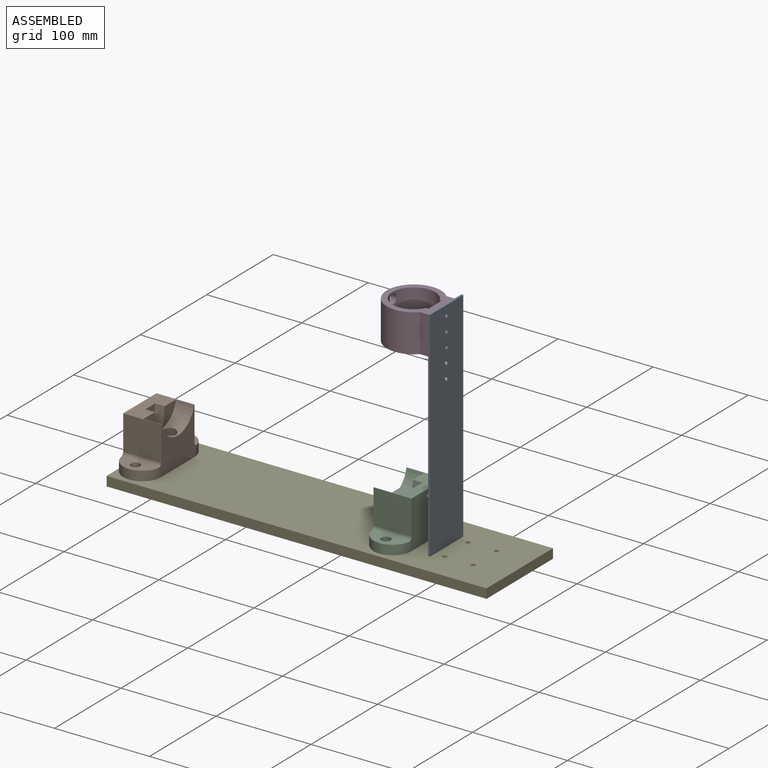
[diagram: assembled view]
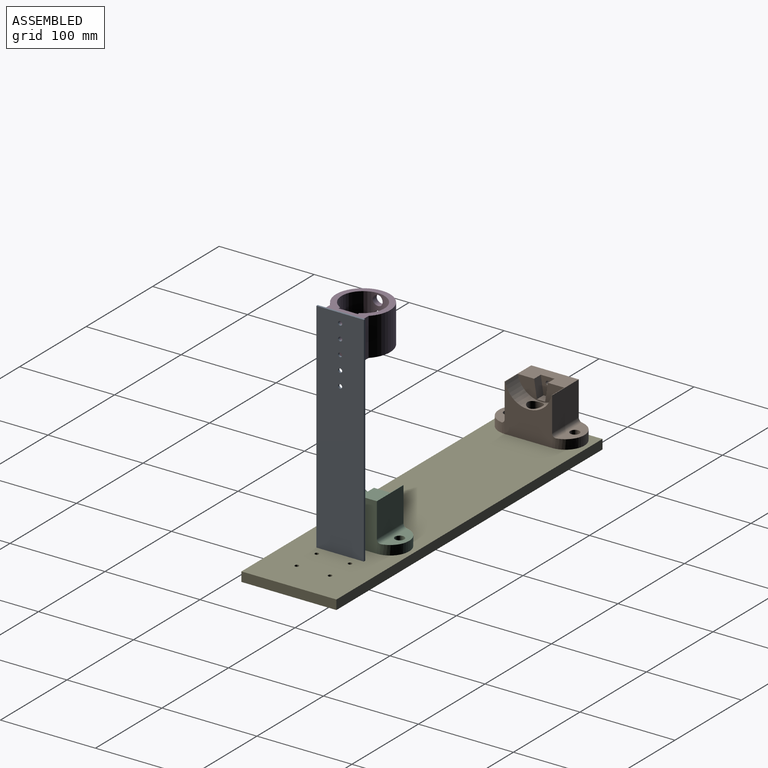
[diagram: assembled view, second angle]
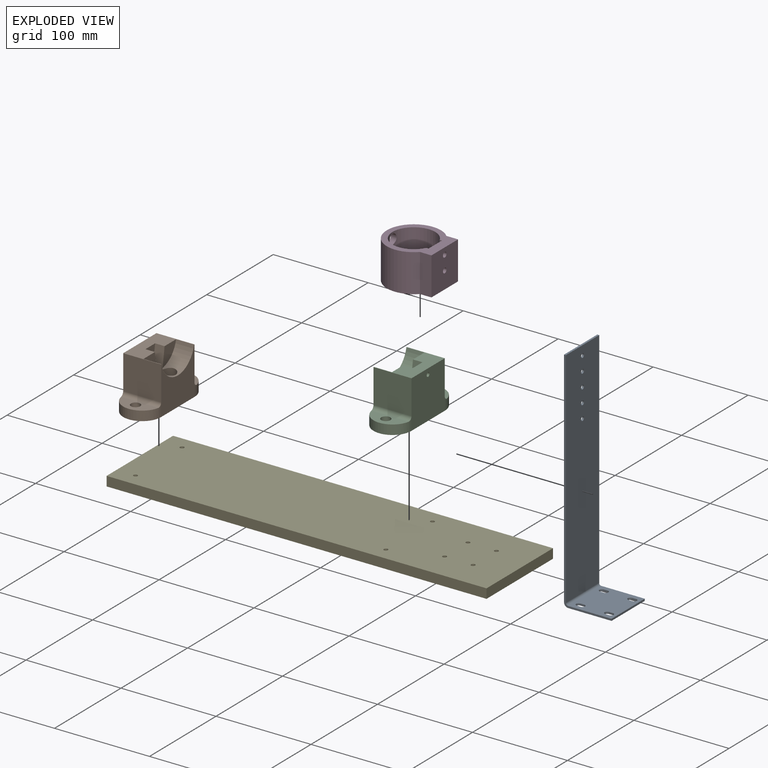
[diagram: exploded view]
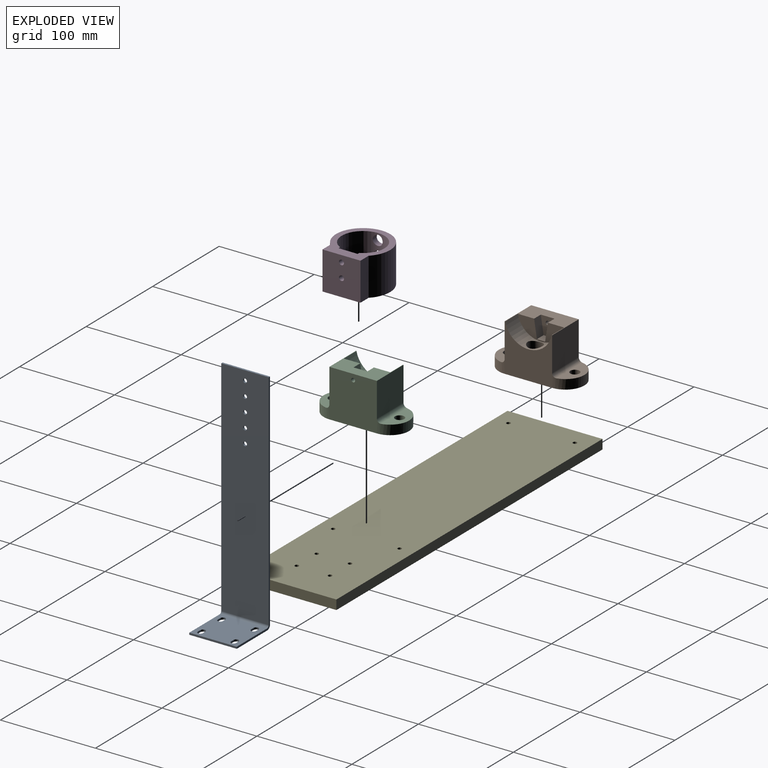
[diagram: exploded view, second angle]
ASSEMBLY  parts=5 mates=3
PART A: 35 faces, bbox 50x240x50 mm
  f0: plane 235.7x2mm, normal (0,0,-1), area 471.4mm2, adj f7,f8,f9,f32
  f1: plane 235.7x2mm, normal (0,0,1), area 471.4mm2, adj f7,f8,f9,f31
  f2: cylinder r=2.1mm len=4.2mm, axis (1,0,0), area 26.4mm2, adj f8,f9
  f3: cylinder r=2.1mm len=4.2mm, axis (1,0,0), area 26.4mm2, adj f8,f9
  f4: cylinder r=2.1mm len=4.2mm, axis (1,0,0), area 26.4mm2, adj f8,f9
  f5: cylinder r=2.1mm len=4.2mm, axis (1,0,0), area 26.4mm2, adj f8,f9
  f6: cylinder r=2.1mm len=4.2mm, axis (1,0,0), area 26.4mm2, adj f8,f9
  f7: plane 50x2mm, normal (0,-1,0), area 100mm2, adj f0,f1,f8,f9
  f8: plane 235.7x50mm, normal (1,0,0), area 11715.7mm2, adj f0,f1,f2,f3,f4,f5,f6,f7
  f9: plane 235.7x50mm, normal (-1,0,0), area 11715.7mm2, adj f0,f1,f2,f3,f4,f5,f6,f7
  f10: plane 4x2mm, normal (0,0,1), area 8mm2, adj f11,f28,f29,f30
  f11: cylinder r=2.65mm len=5.3mm, axis (0,-1,0), area 16.7mm2, adj f10,f12,f29,f30
  f12: plane 4x2mm, normal (0,0,-1), area 8mm2, adj f11,f28,f29,f30
  f13: plane 4x2mm, normal (0,0,-1), area 8mm2, adj f14,f27,f29,f30
  f14: cylinder r=2.65mm len=5.3mm, axis (0,-1,0), area 16.7mm2, adj f13,f15,f29,f30
  f15: plane 4x2mm, normal (0,0,1), area 8mm2, adj f14,f27,f29,f30
  f16: plane 4x2mm, normal (0,0,-1), area 8mm2, adj f17,f26,f29,f30
  f17: cylinder r=2.65mm len=5.3mm, axis (0,-1,0), area 16.7mm2, adj f16,f18,f29,f30
  f18: plane 4x2mm, normal (0,0,1), area 8mm2, adj f17,f26,f29,f30
  f19: plane 4x2mm, normal (0,0,-1), area 8mm2, adj f20,f25,f29,f30
  f20: cylinder r=2.65mm len=5.3mm, axis (0,-1,0), area 16.7mm2, adj f19,f21,f29,f30
  f21: plane 4x2mm, normal (0,0,1), area 8mm2, adj f20,f25,f29,f30
  f22: plane 45.7x2mm, normal (0,0,-1), area 91.4mm2, adj f23,f29,f30,f32
  f23: plane 50x2mm, normal (1,0,0), area 100mm2, adj f22,f24,f29,f30
  f24: plane 45.7x2mm, normal (0,0,1), area 91.4mm2, adj f23,f29,f30,f31
  f25: cylinder r=2.65mm len=5.3mm, axis (0,-1,0), area 16.7mm2, adj f19,f21,f29,f30
  f26: cylinder r=2.65mm len=5.3mm, axis (0,-1,0), area 16.7mm2, adj f16,f18,f29,f30
  f27: cylinder r=2.65mm len=5.3mm, axis (0,-1,0), area 16.7mm2, adj f13,f15,f29,f30
  f28: cylinder r=2.65mm len=5.3mm, axis (0,-1,0), area 16.7mm2, adj f10,f12,f29,f30
  f29: plane 50x45.7mm, normal (0,-1,0), area 2112mm2, adj f10,f11,f12,f13,f14,f15,f16,f17
  f30: plane 50x45.7mm, normal (0,1,0), area 2112mm2, adj f10,f11,f12,f13,f14,f15,f16,f17
  f31: plane 4.3x4.3mm, normal (0,0,1), area 10.4mm2, adj f1,f24,f33,f34
  f32: plane 4.3x4.3mm, normal (0,0,-1), area 10.4mm2, adj f0,f22,f33,f34
  f33: cylinder r=4.3mm len=50mm, axis (0,0,1), area 337.7mm2, adj f9,f30,f31,f32
  f34: cylinder r=2.3mm len=50mm, axis (0,0,1), area 180.6mm2, adj f8,f29,f31,f32
PART B: 27 faces, bbox 50x90x40 mm
  f0: plane 50x50mm, normal (0,0,1), area 1766.6mm2, adj f2,f4,f5,f6,f13,f14,f16
  f1: plane 48.99x20mm, normal (0,0,1), area 516.1mm2, adj f6,f9,f10,f11,f13
  f2: plane 90x40mm, normal (-1,0,0), area 3212.5mm2, adj f0,f3,f14,f16,f18,f21
  f3: plane 50x50mm, normal (0,0,-1), area 2486.1mm2, adj f2,f4,f5,f13,f14,f16,f26
  f4: plane 40x36mm, normal (0,-1,0), area 1440mm2, adj f0,f3,f13,f24
  f5: plane 40x36mm, normal (0,1,0), area 1440mm2, adj f0,f3,f13,f25
  f6: cylinder r=25mm len=48.99mm, axis (0,0,1), area 1109.9mm2, adj f0,f1,f8,f13
  f7: plane 15.5x15.5mm, normal (1,0,0), area 188.7mm2, adj f8
  f8: cylinder r=7.75mm len=24.23mm, axis (1,0,0), area 1149.8mm2, adj f6,f7
  f9: plane 18.76x10mm, normal (0.15,-0.99,0), area 189.8mm2, adj f1,f10,f12,f13
  f10: plane 10x8.7mm, normal (1,0,0), area 87mm2, adj f1,f9,f11,f12
  f11: plane 18.76x10mm, normal (0.15,0.99,0), area 189.8mm2, adj f1,f10,f12,f13
  f12: plane 18.76x14.46mm, normal (0,0,1), area 203.4mm2, adj f9,f10,f11,f13,f26
  f13: plane 50x40mm, normal (1,0,0), area 924.6mm2, adj f0,f1,f3,f4,f5,f6,f9,f11
  f14: cylinder r=20mm len=40mm, axis (-1,0,0), area 635.2mm2, adj f0,f2,f3,f15,f25
  f15: plane 39.19x16mm, normal (1,0,0), area 394.7mm2, adj f14,f23,f25
  f16: cylinder r=20mm len=40mm, axis (-1,0,0), area 635.2mm2, adj f0,f2,f3,f17,f24
  f17: plane 39.19x16mm, normal (1,0,0), area 394.7mm2, adj f16,f20,f24
  f18: cylinder r=2.65mm len=5.3mm, axis (1,0,0), area 83.3mm2, adj f2,f19
  f19: plane 9.75x9.75mm, normal (1,0,0), area 52.6mm2, adj f18,f20
  f20: cylinder r=4.88mm len=9.75mm, axis (1,0,0), area 153.2mm2, adj f17,f19
  f21: cylinder r=2.65mm len=5.3mm, axis (1,0,0), area 83.3mm2, adj f2,f22
  f22: plane 9.75x9.75mm, normal (1,0,0), area 52.6mm2, adj f21,f23
  f23: cylinder r=4.88mm len=9.75mm, axis (1,0,0), area 153.2mm2, adj f15,f22
  f24: cylinder r=4mm len=40mm, axis (0,0,1), area 250.2mm2, adj f4,f16,f17
  f25: cylinder r=4mm len=40mm, axis (0,0,-1), area 250.2mm2, adj f5,f14,f15
  f26: cylinder r=2.1mm len=11mm, axis (0,0,1), area 145.1mm2, adj f3,f12
PART C: same geometry as B
PART D: 18 faces, bbox 61x57x40 mm
  f0: cylinder r=28.5mm len=57mm, axis (0,0,-1), area 5216.1mm2, adj f5,f7,f8,f9,f16,f17
  f1: cylinder r=22.5mm len=45mm, axis (0,0,-1), area 4651.9mm2, adj f2,f4,f8,f9,f16,f17
  f2: plane 40x2.34mm, normal (0,-1,0), area 93.8mm2, adj f1,f3,f8,f9
  f3: plane 40x20mm, normal (-1,0,0), area 650.7mm2, adj f2,f4,f8,f9,f12,f15
  f4: plane 40x2.34mm, normal (0,1,0), area 93.8mm2, adj f1,f3,f8,f9
  f5: plane 40x12.2mm, normal (0,-1,0), area 487.8mm2, adj f0,f6,f8,f9
  f6: plane 40x40mm, normal (1,0,0), area 1555.9mm2, adj f5,f7,f8,f9,f10,f13
  f7: plane 40x12.2mm, normal (0,1,0), area 487.8mm2, adj f0,f6,f8,f9
  f8: plane 61x57mm, normal (0,0,1), area 1208.1mm2, adj f0,f1,f2,f3,f4,f5,f6,f7
  f9: plane 61x57mm, normal (0,0,-1), area 1208.1mm2, adj f0,f1,f2,f3,f4,f5,f6,f7
  f10: cylinder r=2.65mm len=5.3mm, axis (-1,0,0), area 83.3mm2, adj f6,f11
  f11: plane 9.75x9.75mm, normal (-1,0,0), area 52.6mm2, adj f10,f12
  f12: cylinder r=4.88mm len=9.75mm, axis (-1,0,0), area 153.2mm2, adj f3,f11
  f13: cylinder r=2.65mm len=5.3mm, axis (-1,0,0), area 83.3mm2, adj f6,f14
  f14: plane 9.75x9.75mm, normal (-1,0,0), area 52.6mm2, adj f13,f15
  f15: cylinder r=4.88mm len=9.75mm, axis (-1,0,0), area 153.2mm2, adj f3,f14
  f16: cylinder r=5.25mm len=10.5mm, axis (1,0,0), area 200.1mm2, adj f0,f1
  f17: cylinder r=5.25mm len=10.5mm, axis (1,0,0), area 200.1mm2, adj f0,f1
PART E: 14 faces, bbox 400x100x10 mm
  f0: plane 400x10mm, normal (0,-1,0), area 4000mm2, adj f1,f3,f4,f5
  f1: plane 100x10mm, normal (1,0,0), area 1000mm2, adj f0,f2,f4,f5
  f2: plane 400x10mm, normal (0,1,0), area 4000mm2, adj f1,f3,f4,f5
  f3: plane 100x10mm, normal (-1,0,0), area 1000mm2, adj f0,f2,f4,f5
  f4: plane 400x100mm, normal (0,0,1), area 39889.2mm2, adj f0,f1,f2,f3,f6,f7,f8,f9
  f5: plane 400x100mm, normal (0,0,-1), area 39889.2mm2, adj f0,f1,f2,f3,f6,f7,f8,f9
  f6: cylinder r=2.1mm len=10mm, axis (0,0,1), area 131.9mm2, adj f4,f5
  f7: cylinder r=2.1mm len=10mm, axis (0,0,1), area 131.9mm2, adj f4,f5
  f8: cylinder r=2.1mm len=10mm, axis (0,0,1), area 131.9mm2, adj f4,f5
  f9: cylinder r=2.1mm len=10mm, axis (0,0,1), area 131.9mm2, adj f4,f5
  f10: cylinder r=2.1mm len=10mm, axis (0,0,1), area 131.9mm2, adj f4,f5
  f11: cylinder r=2.1mm len=10mm, axis (0,0,1), area 131.9mm2, adj f4,f5
  f12: cylinder r=2.1mm len=10mm, axis (0,0,1), area 131.9mm2, adj f4,f5
  f13: cylinder r=2.1mm len=10mm, axis (0,0,1), area 131.9mm2, adj f4,f5
PLACE A rot(axis=(-1,0,0),90deg) t=(183.53,42.44,282)mm
PLACE B rot(axis=(0.71,0,0.71),180deg) t=(-137.47,42.44,52)mm
PLACE C rot(axis=(0,-1,0),90deg) t=(166.03,92.44,52)mm
PLACE D t=(151.03,67.44,239)mm
PLACE E t=(62.53,67.44,42)mm
MATE fastened C.f18 <-> E.f8  axis (0,0,-1) through (146.03,32.44,52)mm
MATE fastened B.f18 <-> E.f6  axis (0,0,-1) through (-117.47,102.44,52)mm
MATE fastened D.f10 <-> A.f5  axis (1,0,0) through (183.53,67.44,272)mm
